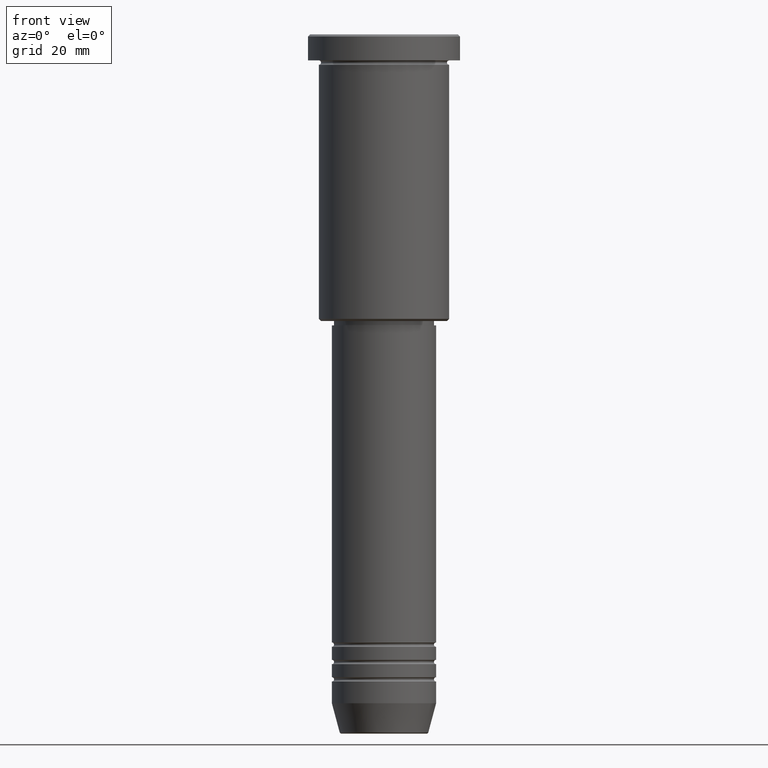
[diagram: clean part render]
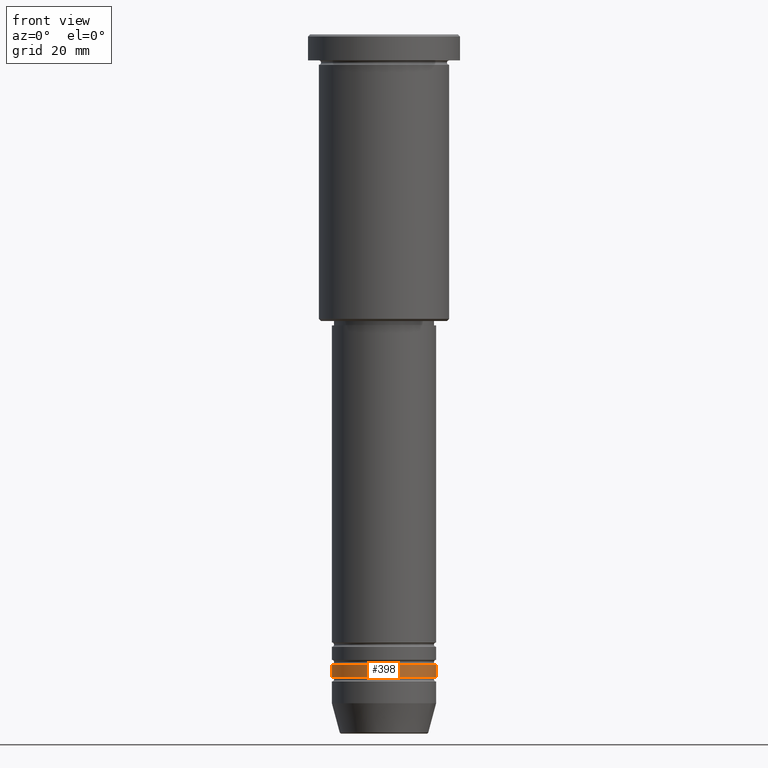
[diagram: same view with one face highlighted and labeled with its STEP entity id]
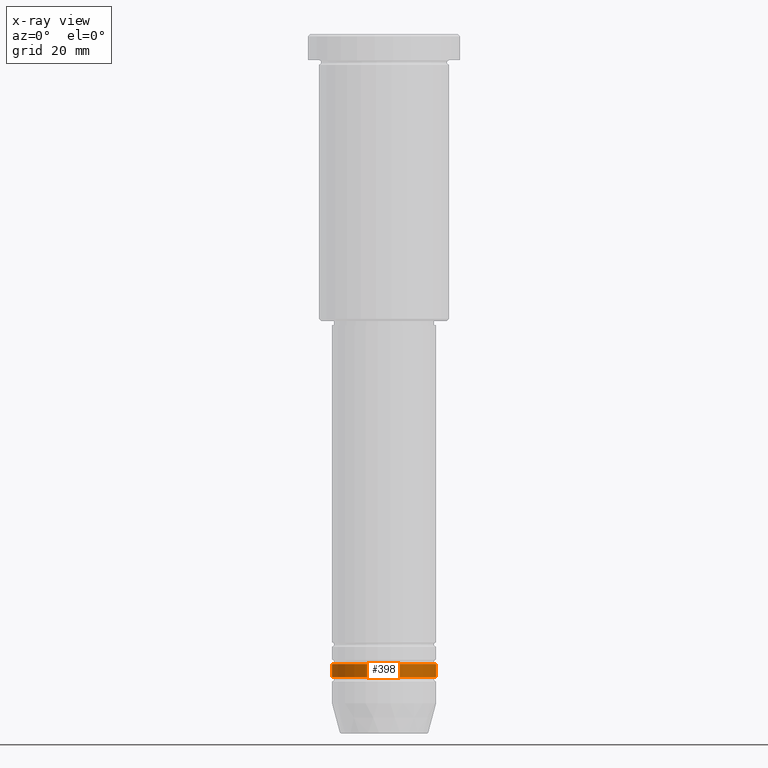
[diagram: x-ray of the same camera — body ghosted, the highlighted face saturated]
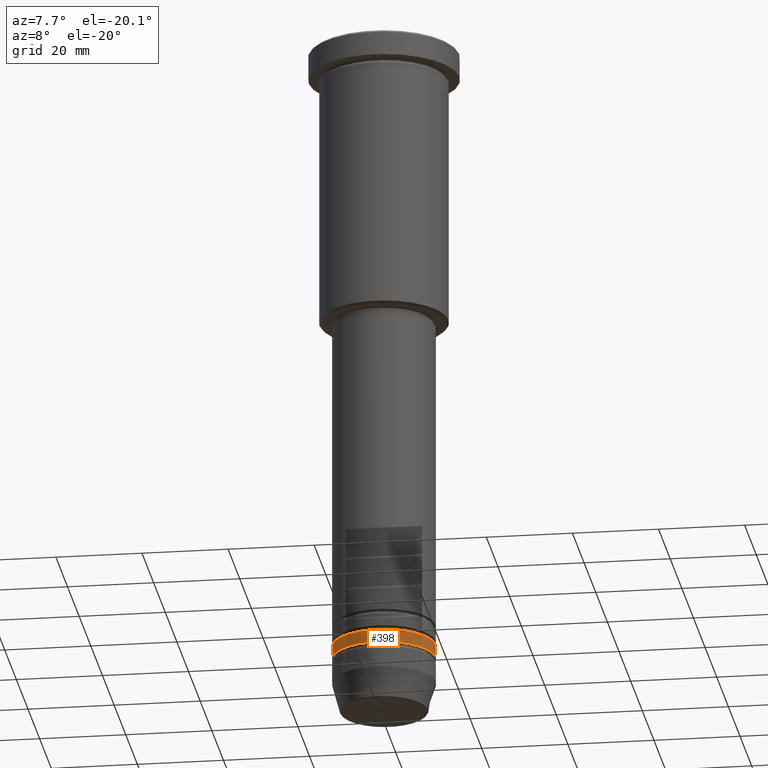
[diagram: same view with one face highlighted and labeled with its STEP entity id]
A machine part, front view. The second image highlights one B-rep face of the part: STEP entity #398.
The next image is the same camera in x-ray: the body ghosted, the highlighted face saturated — about 0% of this face is hidden behind the body in this view.
A second angle (auxiliary view) of the same face is appended — the face is thin or edge-on in the first view.
In plain terms, the highlighted cylindrical surface (partial cylindrical patch) has radius 12 mm, axis along (-0, -0, 1).
Its self-contained STEP definition (entity closure, byte-faithful):
#26 = CIRCLE ( 'NONE', #659, 12.00000000000000000 ) ;
#49 = ORIENTED_EDGE ( 'NONE', *, *, #95, .F. ) ;
#81 = VERTEX_POINT ( 'NONE', #766 ) ;
#95 = EDGE_CURVE ( 'NONE', #81, #172, #945, .T. ) ;
#119 = CARTESIAN_POINT ( 'NONE',  ( 12.00000000000000000, 0.000000000000000000, -147.9999999999999147 ) ) ;
#160 = EDGE_CURVE ( 'NONE', #81, #500, #26, .T. ) ;
#172 = VERTEX_POINT ( 'NONE', #816 ) ;
#180 = DIRECTION ( 'NONE',  ( 1.000000000000000000, 0.000000000000000000, 0.000000000000000000 ) ) ;
#194 = FACE_OUTER_BOUND ( 'NONE', #699, .T. ) ;
#292 = ORIENTED_EDGE ( 'NONE', *, *, #392, .F. ) ;
#360 = DIRECTION ( 'NONE',  ( -0.000000000000000000, -0.000000000000000000, 1.000000000000000000 ) ) ;
#378 = VECTOR ( 'NONE', #984, 1000.000000000000000 ) ;
#387 = DIRECTION ( 'NONE',  ( -0.000000000000000000, -0.000000000000000000, 1.000000000000000000 ) ) ;
#391 = ORIENTED_EDGE ( 'NONE', *, *, #160, .T. ) ;
#392 = EDGE_CURVE ( 'NONE', #172, #1175, #506, .T. ) ;
#398 = ADVANCED_FACE ( 'NONE', ( #194 ), #924, .T. ) ;
#400 = AXIS2_PLACEMENT_3D ( 'NONE', #919, #741, #1009 ) ;
#500 = VERTEX_POINT ( 'NONE', #119 ) ;
#506 = CIRCLE ( 'NONE', #400, 12.00000000000000000 ) ;
#541 = ORIENTED_EDGE ( 'NONE', *, *, #920, .T. ) ;
#561 = LINE ( 'NONE', #804, #623 ) ;
#623 = VECTOR ( 'NONE', #921, 1000.000000000000000 ) ;
#659 = AXIS2_PLACEMENT_3D ( 'NONE', #990, #360, #180 ) ;
#677 = CARTESIAN_POINT ( 'NONE',  ( -12.00000000000000000, 1.469576158976823947E-15, 0.000000000000000000 ) ) ;
#699 = EDGE_LOOP ( 'NONE', ( #49, #391, #541, #292 ) ) ;
#741 = DIRECTION ( 'NONE',  ( -0.000000000000000000, -0.000000000000000000, 1.000000000000000000 ) ) ;
#766 = CARTESIAN_POINT ( 'NONE',  ( -12.00000000000000000, 1.469576158976823947E-15, -147.9999999999999147 ) ) ;
#784 = DIRECTION ( 'NONE',  ( 1.000000000000000000, 0.000000000000000000, 0.000000000000000000 ) ) ;
#804 = CARTESIAN_POINT ( 'NONE',  ( 12.00000000000000000, 0.000000000000000000, 0.000000000000000000 ) ) ;
#816 = CARTESIAN_POINT ( 'NONE',  ( -12.00000000000000000, 1.469576158976823947E-15, -144.9999999999999147 ) ) ;
#835 = CARTESIAN_POINT ( 'NONE',  ( 0.000000000000000000, 0.000000000000000000, 0.000000000000000000 ) ) ;
#919 = CARTESIAN_POINT ( 'NONE',  ( 0.000000000000000000, 0.000000000000000000, -144.9999999999999147 ) ) ;
#920 = EDGE_CURVE ( 'NONE', #500, #1175, #561, .T. ) ;
#921 = DIRECTION ( 'NONE',  ( -0.000000000000000000, -0.000000000000000000, 1.000000000000000000 ) ) ;
#924 = CYLINDRICAL_SURFACE ( 'NONE', #1124, 12.00000000000000000 ) ;
#945 = LINE ( 'NONE', #677, #378 ) ;
#961 = CARTESIAN_POINT ( 'NONE',  ( 12.00000000000000000, 0.000000000000000000, -144.9999999999999147 ) ) ;
#984 = DIRECTION ( 'NONE',  ( -0.000000000000000000, -0.000000000000000000, 1.000000000000000000 ) ) ;
#990 = CARTESIAN_POINT ( 'NONE',  ( 0.000000000000000000, 0.000000000000000000, -147.9999999999999147 ) ) ;
#1009 = DIRECTION ( 'NONE',  ( 1.000000000000000000, 0.000000000000000000, 0.000000000000000000 ) ) ;
#1124 = AXIS2_PLACEMENT_3D ( 'NONE', #835, #387, #784 ) ;
#1175 = VERTEX_POINT ( 'NONE', #961 ) ;